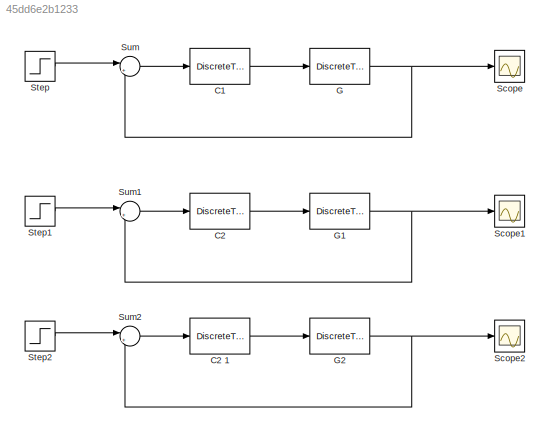
MODEL slx_45dd6e2b1233
KIND model
CONFIG AbsTol = auto
CONFIG FixedStep = auto
CONFIG MaxStep = auto
CONFIG MinStep = auto
CONFIG RelTol = 1e-3
CONFIG SampleTimeConstraint = Unconstrained
CONFIG Solver = ode45
CONFIG SolverMode = Auto
CONFIG SolverName = ode45
CONFIG StartTime = 0.0
CONFIG StopTime = Tsim
BLOCK [DiscreteTransferFcn] C1 
  Denominator = cell2mat(C1.den)
  InputPortMap = u0
  Numerator = cell2mat(C1.num)
  Ports = [1, 1]
  SampleTime = Tc
BLOCK [DiscreteTransferFcn] C2 
  Denominator = cell2mat(C2.den)
  InputPortMap = u0
  Numerator = cell2mat(C2.num)
  Ports = [1, 1]
  SampleTime = Tc
BLOCK [DiscreteTransferFcn] C2 1
  Denominator = cell2mat(C3.den)
  InputPortMap = u0
  Numerator = cell2mat(C3.num)
  Ports = [1, 1]
  SampleTime = Tc
BLOCK [DiscreteTransferFcn] G
  Denominator = cell2mat(G.den)
  InputPortMap = u0
  Numerator = cell2mat(G.num)
  Ports = [1, 1]
  SampleTime = Tc
BLOCK [DiscreteTransferFcn] G1
  Denominator = cell2mat(G.den)
  InputPortMap = u0
  Numerator = cell2mat(G.num)
  Ports = [1, 1]
  SampleTime = Tc
BLOCK [DiscreteTransferFcn] G2
  Denominator = cell2mat(Gzero.den)
  InputPortMap = u0
  Numerator = cell2mat(Gzero.num)
  Ports = [1, 1]
  SampleTime = Tc
BLOCK [Scope] Scope
  Floating = off
  NumInputPorts = 1
  Ports = [1]
BLOCK [Scope] Scope1
  Floating = off
  NumInputPorts = 1
  Ports = [1]
  SaveName = ScopeData1
BLOCK [Scope] Scope2
  Floating = off
  NumInputPorts = 1
  Ports = [1]
  SaveName = ScopeData2
BLOCK [Step] Step
  SampleTime = 0
BLOCK [Step] Step1
  SampleTime = 0
BLOCK [Step] Step2
  SampleTime = 0
BLOCK [Sum] Sum
  IconShape = round
  InputSameDT = off
  Inputs = |+-
  OutDataTypeStr = Inherit: Inherit via internal rule
  Ports = [2, 1]
  SaturateOnIntegerOverflow = off
BLOCK [Sum] Sum1
  IconShape = round
  InputSameDT = off
  Inputs = |+-
  OutDataTypeStr = Inherit: Inherit via internal rule
  Ports = [2, 1]
  SaturateOnIntegerOverflow = off
BLOCK [Sum] Sum2
  IconShape = round
  InputSameDT = off
  Inputs = |+-
  OutDataTypeStr = Inherit: Inherit via internal rule
  Ports = [2, 1]
  SaturateOnIntegerOverflow = off
LINE C1 :1 -> G:1
LINE C2 1:1 -> G2:1
LINE C2 :1 -> G1:1
NET G1:1 -> Scope1:1, Sum1:2
NET G2:1 -> Scope2:1, Sum2:2
NET G:1 -> Scope:1, Sum:2
LINE Step1:1 -> Sum1:1
LINE Step2:1 -> Sum2:1
LINE Step:1 -> Sum:1
LINE Sum1:1 -> C2 :1
LINE Sum2:1 -> C2 1:1
LINE Sum:1 -> C1 :1
note: NET lines group one-source signal fan-out (src -> all destinations, sorted); 1:1 wires keep LINE
